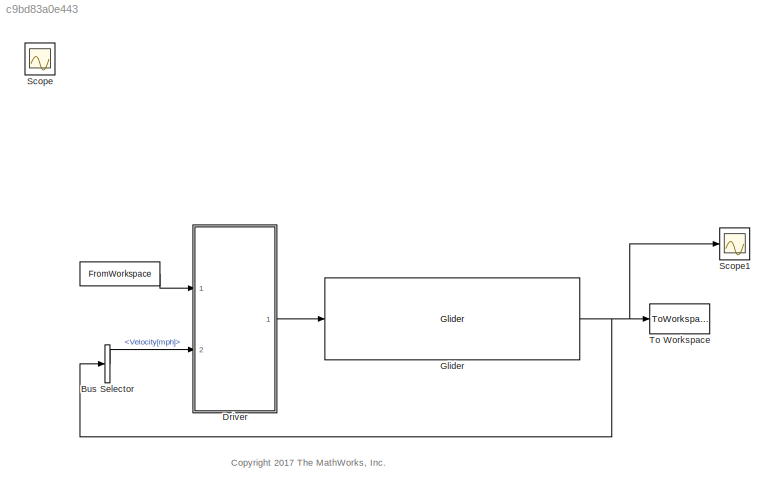
MODEL slx_c9bd83a0e443
KIND model
CONFIG AbsTol = auto
CONFIG EnableMultiTasking = on
CONFIG FixedStep = auto
CONFIG MaxStep = .1
CONFIG MinStep = auto
CONFIG PostLoadFcn = GliderDir = pwd;\n\ncd ..\;\nSimulinkDir = pwd;\naddpath(SimulinkDir);\n\ncd(GliderDir);\n\n
CONFIG RelTol = 1e-3
CONFIG SampleTimeConstraint = Unconstrained
CONFIG SolverName = ode45
CONFIG StartTime = 0.0
CONFIG StopTime = TimeUS06
WORKSPACE source: mxarray member
WORKSPACE DrCycles: object (value not decoded)
WORKSPACE DriverPic = [255 255 255 255 255 255 255 255 255 255 255 255 ... (1049040 elements, 940x372x3)]
WORKSPACE TimeHWFET = 765
WORKSPACE TimeUDDS = 1372
WORKSPACE TimeUS06 = 596
WORKSPACE VehiclePic = [252 252 252 252 252 252 252 252 252 252 252 252 ... (1047540 elements, 316x1105x3)]
WORKSPACE aeroDragCoeff = 0.38
WORKSPACE airDensity = 1.23
WORKSPACE frontArea = 2.1
WORKSPACE gravity = 9.81
WORKSPACE inclinationAngle = 0
WORKSPACE inertialMassVeh = 2392
WORKSPACE massVeh = 2300
WORKSPACE rollingResistCoeff = 0.01
BLOCK [FromWorkspace]  
  Tag = DriveCycle
  VariableName = DrCycles.US06
BLOCK [BusSelector] Bus Selector
  OutputSignals = Velocity[mph]
  Ports = [1, 1]
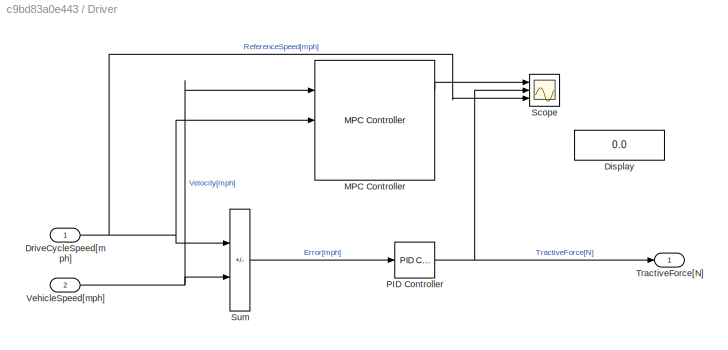
BLOCK [SubSystem] Driver
  Ports = [2, 1]
  RequestExecContextInheritance = off
BLOCK [Display] Driver/Display
  Decimation = 1
  Ports = [1]
BLOCK [Inport] Driver/DriveCycleSpeed[mph]
BLOCK [Reference] Driver/MPC Controller  REF=mpclib/MPC Controller  (lib defined in mdl_ae329e0e0455)
  Ports = [3, 3]
  SCDEnableBlockLinearizationSpecification = on
  SourceBlock = mpclib/MPC Controller
  SourceProductBaseCode = MP
  SourceType = MPC
BLOCK [Reference] Driver/PID Controller  REF=pid_lib/PID Controller
  Ports = [1, 1]
  SourceBlock = pid_lib/PID Controller
  SourceProductBaseCode = SL
  SourceType = PID 1dof
BLOCK [Scope] Driver/Scope
  Floating = off
  NumInputPorts = 3
  Ports = [3]
  ScopeSpecificationString = Simulink.scopes.TimeScopeBlockCfg('CurrentConfiguration', extmgr.ConfigurationSet(extmgr.Configuration('Core','General UI',true),extmgr.Configuration('Core','Source UI',true),extmgr.Configuration('Sources','WiredSimulink',true,'DataLoggingVariableName','ScopeData1'),extmgr.Configuration('Visuals','Time Domain',true),extmgr.Configuration('Tools','Plot Navigation',true),extmgr.Configuration('Tools',...<+40ch>
BLOCK [Sum] Driver/Sum
  IconShape = rectangular
  Inputs = +-
  Ports = [2, 1]
BLOCK [Outport] Driver/TractiveForce[N]
  VectorParamsAs1DForOutWhenUnconnected = off
BLOCK [Inport] Driver/VehicleSpeed[mph]
  Port = 2
BLOCK [Reference] Glider  REF=Driver_Glider_Library/Glider
  Ports = [1, 1]
  SourceBlock = Driver_Glider_Library/Glider
BLOCK [Scope] Scope
  Floating = off
  IOType = viewer
  NumInputPorts = 1
  Ports = []
  ScopeSpecificationString = Simulink.scopes.TimeScopeBlockCfg('CurrentConfiguration', extmgr.ConfigurationSet(extmgr.Configuration('Core','General UI',true),extmgr.Configuration('Core','Source UI',true),extmgr.Configuration('Sources','WiredSimulink',true),extmgr.Configuration('Visuals','Time Domain',true,'SerializedDisplays',{struct('MinYLimReal','-10.07134','MaxYLimReal','90.34126','YLabelReal','','MinYLimMag','0.00000','Ma...<+1509ch>
BLOCK [Scope] Scope1
  Floating = off
  NumInputPorts = 1
  Ports = [1]
  ScopeSpecificationString = Simulink.scopes.TimeScopeBlockCfg('CurrentConfiguration', extmgr.ConfigurationSet(extmgr.Configuration('Core','General UI',true),extmgr.Configuration('Core','Source UI',true),extmgr.Configuration('Sources','WiredSimulink',true,'DataLoggingVariableName','ScopeData2'),extmgr.Configuration('Visuals','Time Domain',true,'SerializedDisplays',{struct('MinYLimReal','-1038366.68035','MaxYLimReal','9344459....<+1479ch>
BLOCK [ToWorkspace] To Workspace
  FixptAsFi = on
  MaxDataPoints = inf
  Ports = [1]
  SampleTime = -1
  SaveFormat = Timeseries
  VariableName = results
ANNOTATION (root): <copyright redacted>
LINE  :1 -> Driver:1
LINE Bus Selector:1 -> Driver:2
NET Driver/DriveCycleSpeed[mph]:1 -> Driver/MPC Controller:2, Driver/Scope:3, Driver/Sum:1
LINE Driver/MPC Controller:1 -> Driver/Scope:1
NET Driver/PID Controller:1 -> Driver/Scope:2, Driver/TractiveForce[N]:1
LINE Driver/Sum:1 -> Driver/PID Controller:1
NET Driver/VehicleSpeed[mph]:1 -> Driver/MPC Controller:1, Driver/Sum:2
LINE Driver:1 -> Glider:1
NET Glider:1 -> Bus Selector:1, Scope1:1, To Workspace:1
note: NET lines group one-source signal fan-out (src -> all destinations, sorted); 1:1 wires keep LINE
